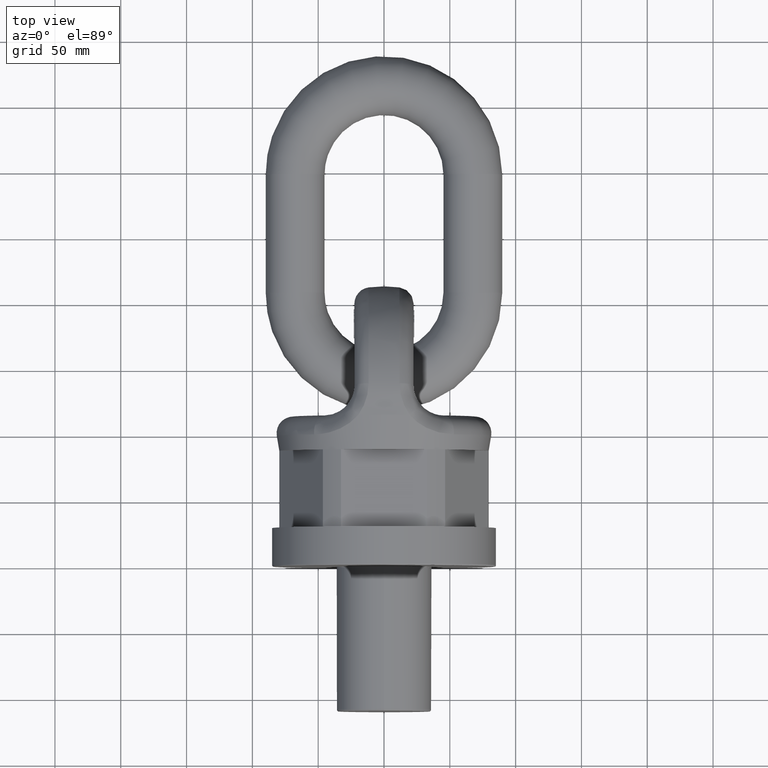
[diagram: clean part render]
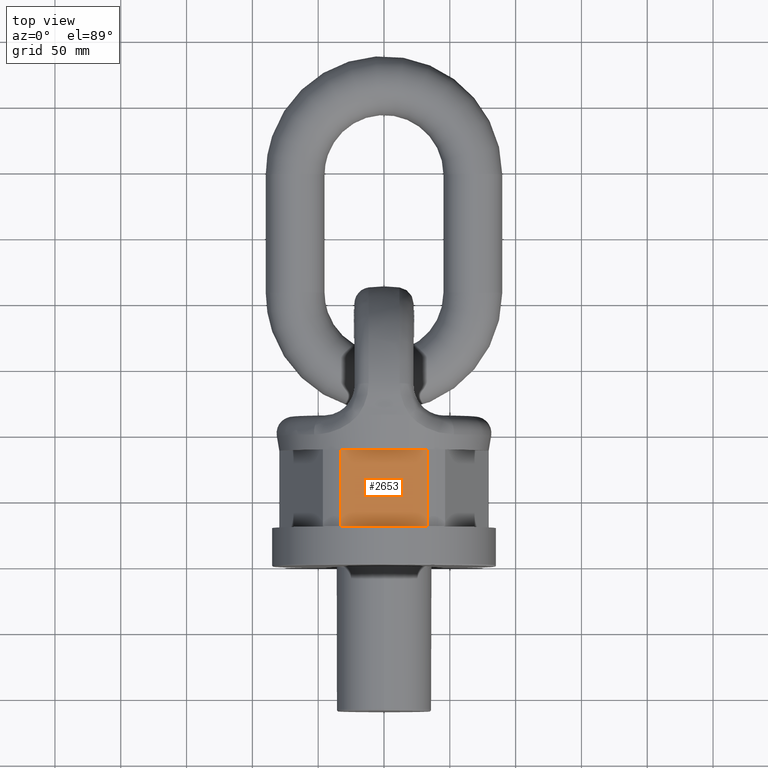
[diagram: same view with one face highlighted and labeled with its STEP entity id]
A machine part, top view. The second image highlights one B-rep face of the part: STEP entity #2653.
In plain terms, the highlighted planar face has unit normal (0, 0, 1).
Its self-contained STEP definition (entity closure, byte-faithful):
#1811=FACE_OUTER_BOUND('',#3076,.T.);
#2042=LINE('',#6582,#2298);
#2062=LINE('',#6635,#2318);
#2063=LINE('',#6637,#2319);
#2064=LINE('',#6639,#2320);
#2298=VECTOR('',#5822,1.);
#2318=VECTOR('',#5868,1.);
#2319=VECTOR('',#5869,1.);
#2320=VECTOR('',#5870,1.);
#2653=ADVANCED_FACE('',(#1811),#2895,.T.);
#2895=PLANE('',#5622);
#3076=EDGE_LOOP('',(#3388,#3389,#3390,#3391));
#3388=ORIENTED_EDGE('',*,*,#4972,.F.);
#3389=ORIENTED_EDGE('',*,*,#4946,.T.);
#3390=ORIENTED_EDGE('',*,*,#4973,.F.);
#3391=ORIENTED_EDGE('',*,*,#4974,.T.);
#4548=VERTEX_POINT('',#6581);
#4549=VERTEX_POINT('',#6583);
#4569=VERTEX_POINT('',#6636);
#4570=VERTEX_POINT('',#6638);
#4946=EDGE_CURVE('',#4549,#4548,#2042,.T.);
#4972=EDGE_CURVE('',#4549,#4569,#2062,.T.);
#4973=EDGE_CURVE('',#4570,#4548,#2063,.T.);
#4974=EDGE_CURVE('',#4570,#4569,#2064,.T.);
#5622=AXIS2_PLACEMENT_3D('',#6640,#5871,#5872);
#5822=DIRECTION('',(1.,5.39262084851817E-17,0.));
#5868=DIRECTION('',(-2.4492935982947E-17,1.,0.));
#5869=DIRECTION('',(2.4492935982947E-17,-1.,0.));
#5870=DIRECTION('',(-1.,0.,0.));
#5871=DIRECTION('',(0.,0.,1.));
#5872=DIRECTION('',(1.,0.,0.));
#6581=CARTESIAN_POINT('',(32.692060707966,29.3333333333333,72.5));
#6582=CARTESIAN_POINT('',(85.,29.3333333333333,72.5));
#6583=CARTESIAN_POINT('',(-32.692060707966,29.3333333333333,72.5));
#6635=CARTESIAN_POINT('',(-32.692060707966,-8.00724550070829E-16,72.5));
#6636=CARTESIAN_POINT('',(-32.692060707966,88.,72.5));
#6637=CARTESIAN_POINT('',(32.692060707966,8.00724550070829E-16,72.5));
#6638=CARTESIAN_POINT('',(32.692060707966,88.,72.5));
#6639=CARTESIAN_POINT('',(41.8578945162478,88.,72.5));
#6640=CARTESIAN_POINT('',(41.8578945162478,88.,72.5));